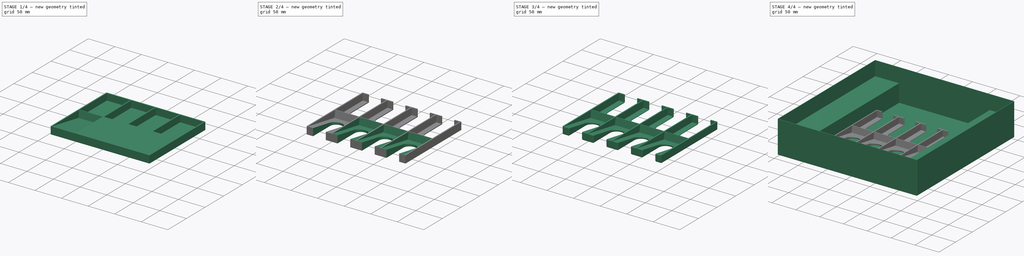
[diagram: build sequence overview — one tinted view per stage of 4, left to right]
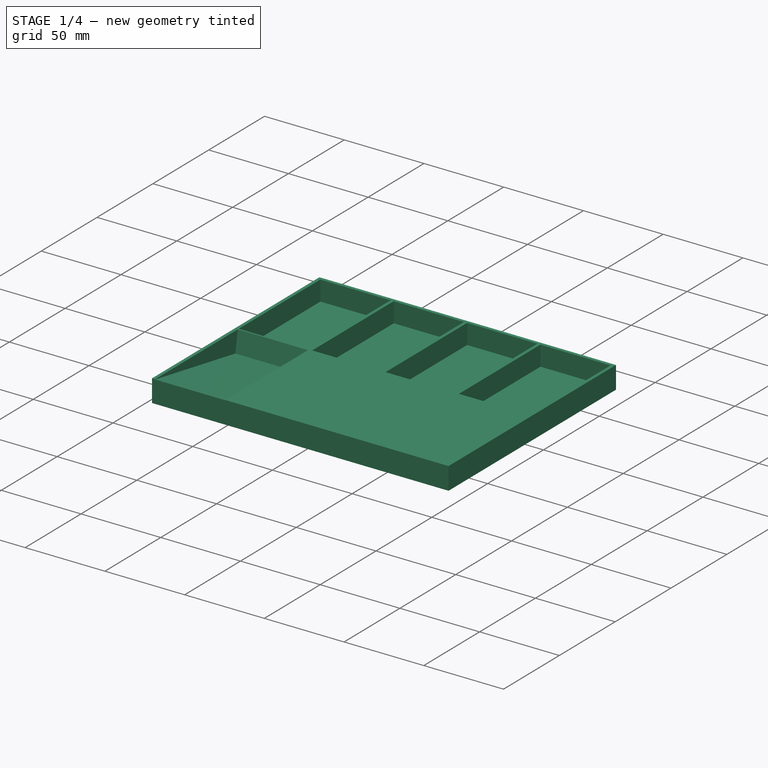
[diagram: stage 1 of 4 — iso view after this stage's code; geometry added in this stage tinted green]
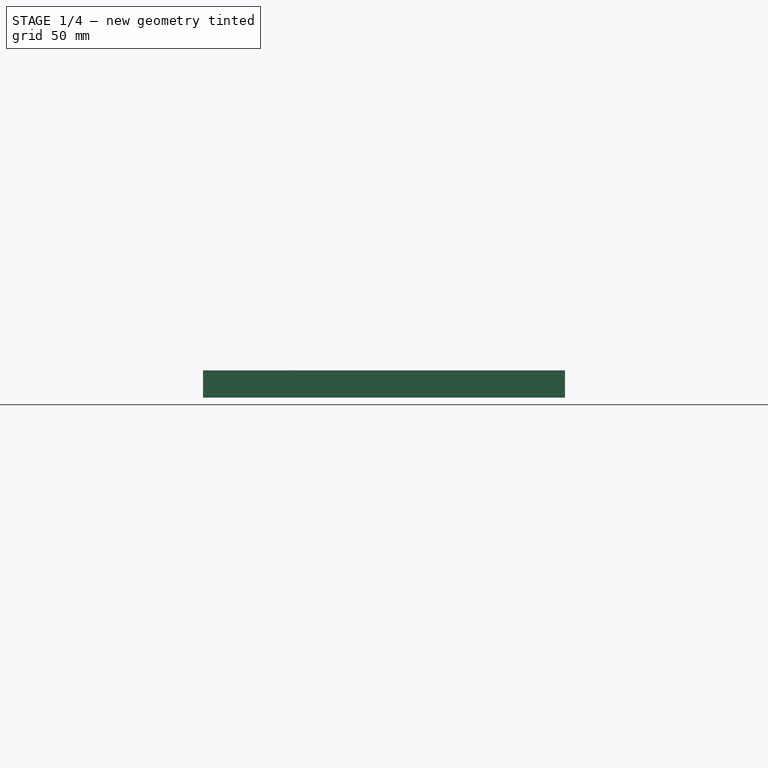
[diagram: stage 1 of 4 — front view after this stage's code; geometry added in this stage tinted green]
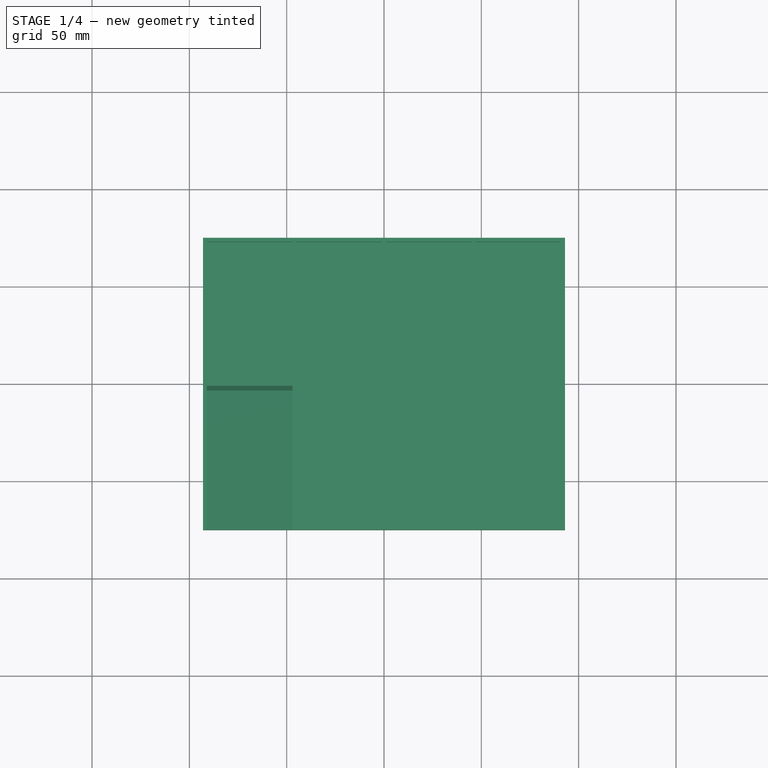
[diagram: stage 1 of 4 — top view after this stage's code; geometry added in this stage tinted green]
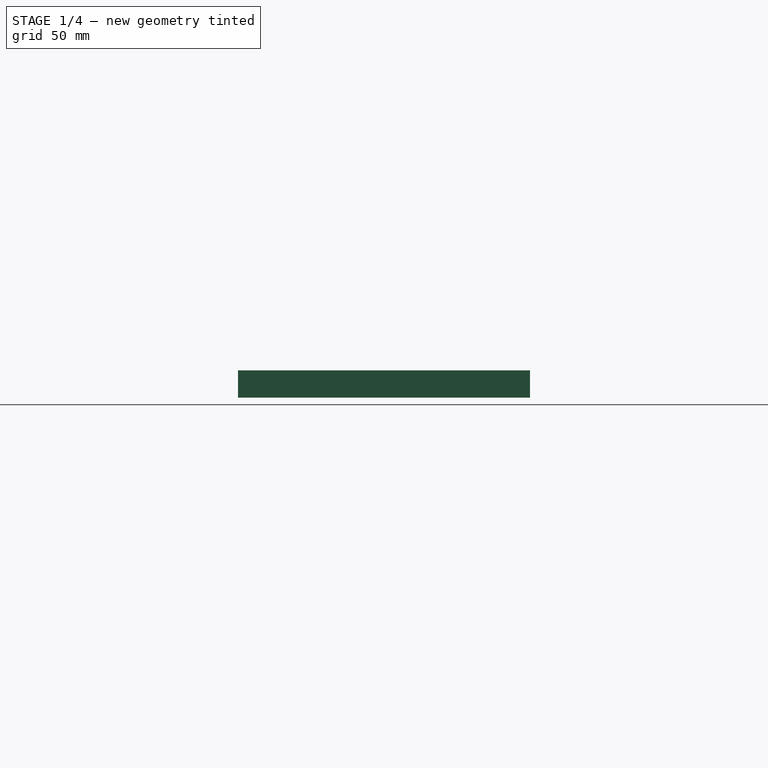
[diagram: stage 1 of 4 — right view after this stage's code; geometry added in this stage tinted green]
FCSTD DOCUMENT  (FreeCAD 0.20R29603 (Git))
Label: DungeonPetz
License: All rights reserved
LicenseURL: http://en.wikipedia.org/wiki/All_rights_reserved
objects: Sketcher::SketchObject×6, PartDesign::Pad×3, PartDesign::Pocket×3, PartDesign::LinearPattern×3, PartDesign::Fillet×3, PartDesign::Mirrored×2, PartDesign::Body×2, App::Part×2, PartDesign::Thickness×1, PartDesign::Plane×1, PartDesign::MultiTransform×1
note: 35 computed .brp shape members not serialized (recipe doc carries the construction recipe); baked Part::Feature solids carry a one-line shape summary decoded from their .brp

FEATURE [PartDesign::Body] Body
  Group = -> [Sketch,Pad,Thickness,Sketch001,Pad001,Mirrored]
  Origin = -> Origin
  Tip = -> Mirrored
FEATURE [App::Part] Part  label="Box"
  Group = -> [Body]
  Origin = -> Origin001
FEATURE [Sketcher::SketchObject] Sketch002
  FullyConstrained = true
  MapMode = 5
  Support = -> [XY_Plane003]
  sketch-geometry (4):
    g0: LineSegment StartX=-93 StartY=75 StartZ=0 EndX=93 EndY=75 EndZ=0
    g1: LineSegment StartX=93 StartY=75 StartZ=0 EndX=93 EndY=-75 EndZ=0
    g2: LineSegment StartX=93 StartY=-75 StartZ=0 EndX=-93 EndY=-75 EndZ=0
    g3: LineSegment StartX=-93 StartY=-75 StartZ=0 EndX=-93 EndY=75 EndZ=0
  constraints (10):
    c: Coincident(g0,g1)
    c: Coincident(g1,g2)
    c: Coincident(g2,g3)
    c: Coincident(g3,g0)
    c: Horizontal(g2)
    c: Vertical(g1)
    c: DistanceX(g0,g0) = 186
    c: DistanceY(g3,g3) = 150
    c: Symmetric(g0,g2,g-1)
    c: Symmetric(g0,g0,g-2)
FEATURE [PartDesign::Pad] Pad002
  Direction = (0,0,1)
  Length = 14
  Length2 = 10
  Profile = -> Sketch002
  ReferenceAxis = -> Sketch002 [N_Axis]
  Type = 0
FEATURE [PartDesign::Plane] DatumPlane
  Length = 219.407
  MapMode = 5
  Placement = pos=(0,0,14) rot=(0,0,1;0rad)
  ResizeMode = 0
  Support = -> [Pad002]
  Width = 183.407
FEATURE [Sketcher::SketchObject] Sketch003
  AttachmentOffset = pos=(-69,0,0) rot=(0,0,1;0rad)
  FullyConstrained = true
  MapMode = 5
  Placement = pos=(-69,0,14) rot=(0,0,1;0rad)
  Support = -> [DatumPlane]
  sketch-geometry (4):
    g0: LineSegment StartX=-22 StartY=73 StartZ=0 EndX=22 EndY=73 EndZ=0
    g1: LineSegment StartX=22 StartY=73 StartZ=0 EndX=22 EndY=0 EndZ=0
    g2: LineSegment StartX=22 StartY=0 StartZ=0 EndX=-22 EndY=0 EndZ=0
    g3: LineSegment StartX=-22 StartY=0 StartZ=0 EndX=-22 EndY=73 EndZ=0
  constraints (11):
    c: Coincident(g0,g1)
    c: Coincident(g1,g2)
    c: Coincident(g2,g3)
    c: Coincident(g3,g0)
    c: Horizontal(g2)
    c: Vertical(g1)
    c: Vertical(g3)
    c: PointOnObject(g1,g-1)
    c: DistanceY(g3,g3) = 73
    c: DistanceX(g0,g0) = 44
    c: Symmetric(g0,g0,g-2)
FEATURE [PartDesign::Pocket] Pocket
  BaseFeature = -> Pad002
  Direction = (0,0,-1)
  Length = 12.5
  Length2 = 5
  Profile = -> Sketch003
  ReferenceAxis = -> Sketch003 [N_Axis]
  Type = 0
FEATURE [PartDesign::LinearPattern] LinearPattern
  BaseFeature = -> Pocket
  Direction = -> Sketch003 [H_Axis]
  Length = 138
  Occurrences = 4
  Originals = -> [Pocket]
FEATURE [Sketcher::SketchObject] Sketch004
  AttachmentOffset = pos=(-69,-1,0) rot=(1,0,0;-0.174533rad)
  FullyConstrained = true
  MapMode = 5
  Placement = pos=(-69,-1,14) rot=(1,0,0;6.10865rad)
  Support = -> [DatumPlane]
  sketch-geometry (4):
    g0: LineSegment StartX=-22 StartY=0 StartZ=0 EndX=22 EndY=0 EndZ=0
    g1: LineSegment StartX=22 StartY=0 StartZ=0 EndX=22 EndY=-73 EndZ=0
    g2: LineSegment StartX=22 StartY=-73 StartZ=0 EndX=-22 EndY=-73 EndZ=0
    g3: LineSegment StartX=-22 StartY=-73 StartZ=0 EndX=-22 EndY=0 EndZ=0
  constraints (11):
    c: Coincident(g0,g1)
    c: Coincident(g1,g2)
    c: Coincident(g2,g3)
    c: Coincident(g3,g0)
    c: Horizontal(g2)
    c: Vertical(g1)
    c: Vertical(g3)
    c: PointOnObject(g0,g-1)
    c: DistanceY(g3,g3) = 73
    c: DistanceX(g0,g0) = 44
    c: Symmetric(g0,g0,g-2)
FEATURE [PartDesign::Pocket] Pocket001
  BaseFeature = -> LinearPattern
  Direction = (0,-0.173648,-0.984808)
  Length = 13
  Length2 = 5
  Profile = -> Sketch004
  ReferenceAxis = -> Sketch004 [N_Axis]
  Type = 0
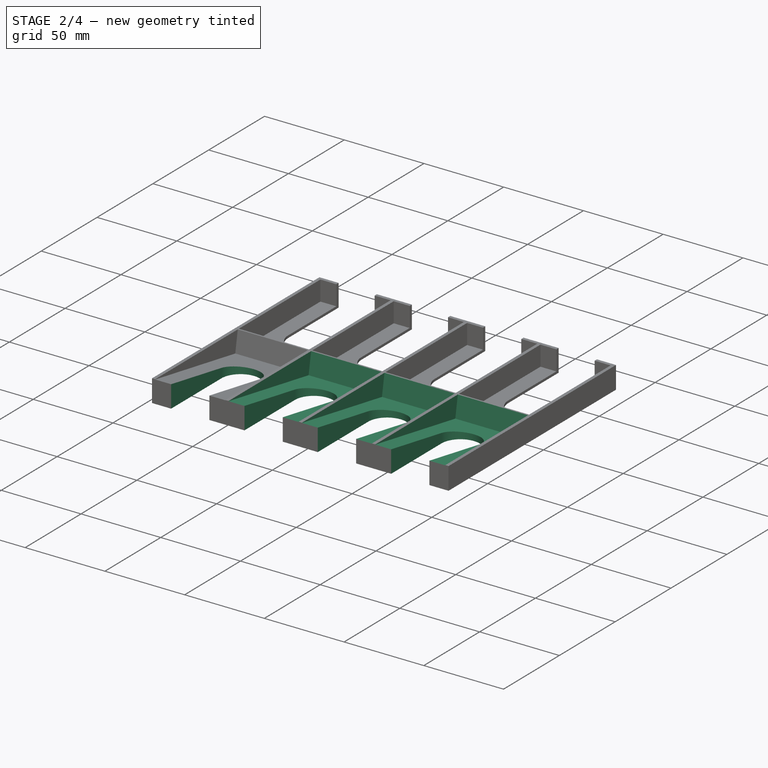
[diagram: stage 2 of 4 — iso view after this stage's code; geometry added in this stage tinted green]
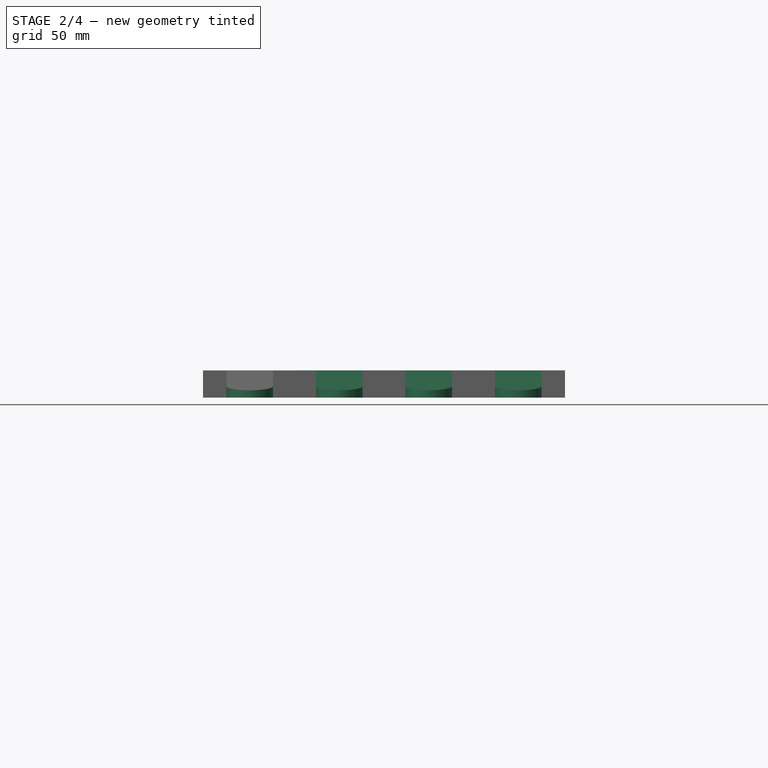
[diagram: stage 2 of 4 — front view after this stage's code; geometry added in this stage tinted green]
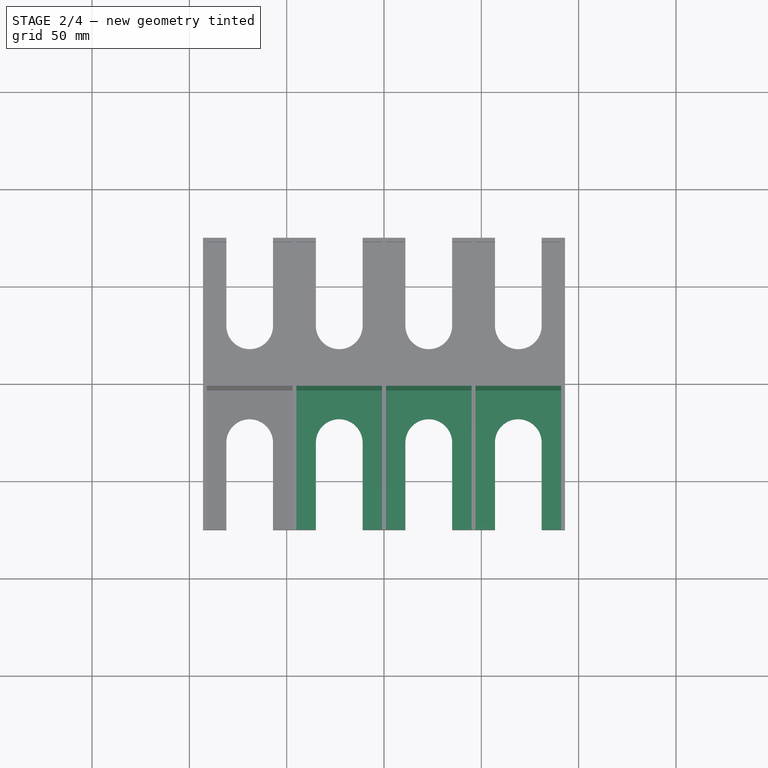
[diagram: stage 2 of 4 — top view after this stage's code; geometry added in this stage tinted green]
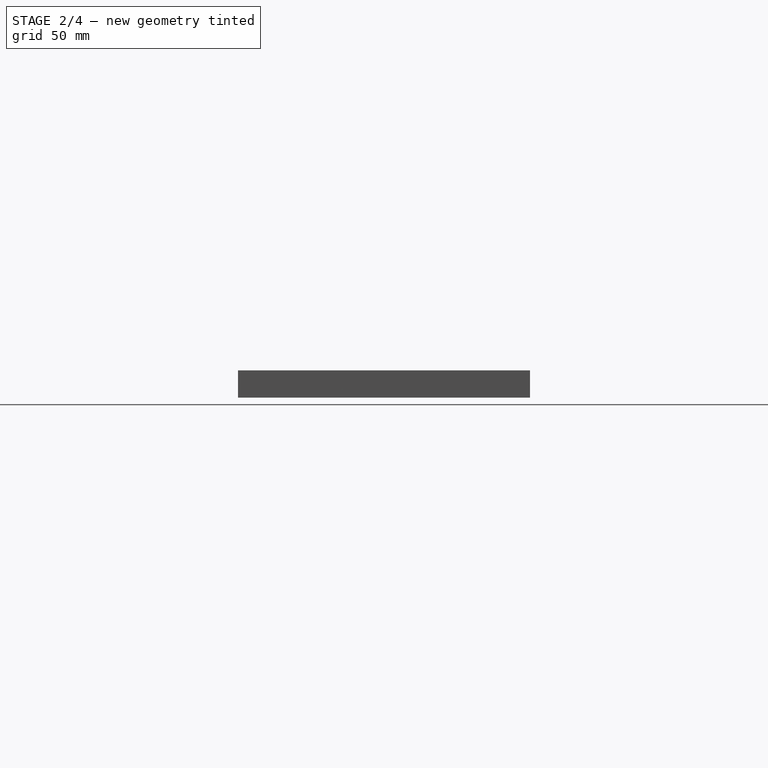
[diagram: stage 2 of 4 — right view after this stage's code; geometry added in this stage tinted green]
FEATURE [PartDesign::LinearPattern] LinearPattern001
  BaseFeature = -> Pocket001
  Direction = -> Sketch004 [H_Axis]
  Length = 138
  Occurrences = 4
  Originals = -> [Pocket001]
FEATURE [Sketcher::SketchObject] Sketch005
  AttachmentOffset = pos=(-69,30,0) rot=(0,0,1;0rad)
  FullyConstrained = false
  MapMode = 5
  Placement = pos=(-69,30,14) rot=(0,0,1;0rad)
  Support = -> [DatumPlane]
  sketch-geometry (4):
    g0: LineSegment StartX=12 StartY=0 StartZ=0 EndX=12 EndY=50 EndZ=0
    g1: LineSegment StartX=12 StartY=50 StartZ=0 EndX=-12 EndY=50 EndZ=0
    g2: LineSegment StartX=-12 StartY=50 StartZ=0 EndX=-12 EndY=0 EndZ=0
    g3: ArcOfCircle CenterX=0 CenterY=0 CenterZ=0 NormalX=0 NormalY=0 NormalZ=1 AngleXU=0 Radius=12 StartAngle=3.14159 EndAngle=6.28319
  constraints (9):
    c: Coincident(g0,g1)
    c: Coincident(g1,g2)
    c: Horizontal(g1)
    c: Vertical(g0)
    c: Vertical(g2)
    c: PointOnObject(g2,g-1)
    c: DistanceX(g1,g1) = 24
    c: Coincident(g3,g-1)
    c: DistanceY(g2,g2) = 50
FEATURE [PartDesign::Pocket] Pocket002
  BaseFeature = -> LinearPattern001
  Direction = (0,0,-1)
  Length = 5
  Length2 = 5
  Profile = -> Sketch005
  ReferenceAxis = -> Sketch005 [N_Axis]
  Type = 1
FEATURE [PartDesign::LinearPattern] LinearPattern002
  Direction = -> Sketch005 [H_Axis]
  Length = 138
  Occurrences = 4
FEATURE [PartDesign::Mirrored] Mirrored001
  MirrorPlane = -> XZ_Plane003
FEATURE [PartDesign::MultiTransform] MultiTransform
  BaseFeature = -> Pocket002
  Originals = -> [Pocket002]
  Transformations = -> [LinearPattern002,Mirrored001]
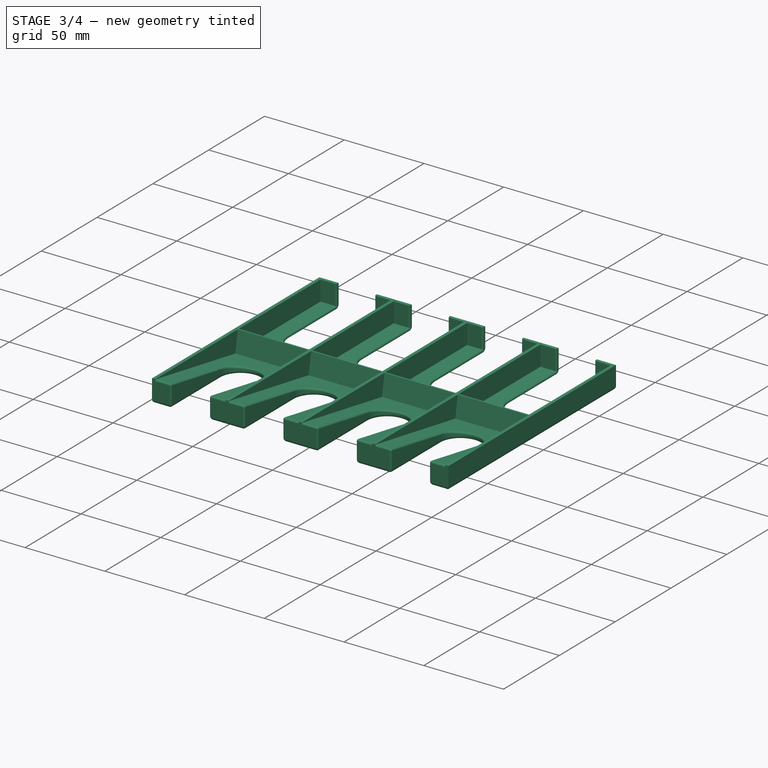
[diagram: stage 3 of 4 — iso view after this stage's code; geometry added in this stage tinted green]
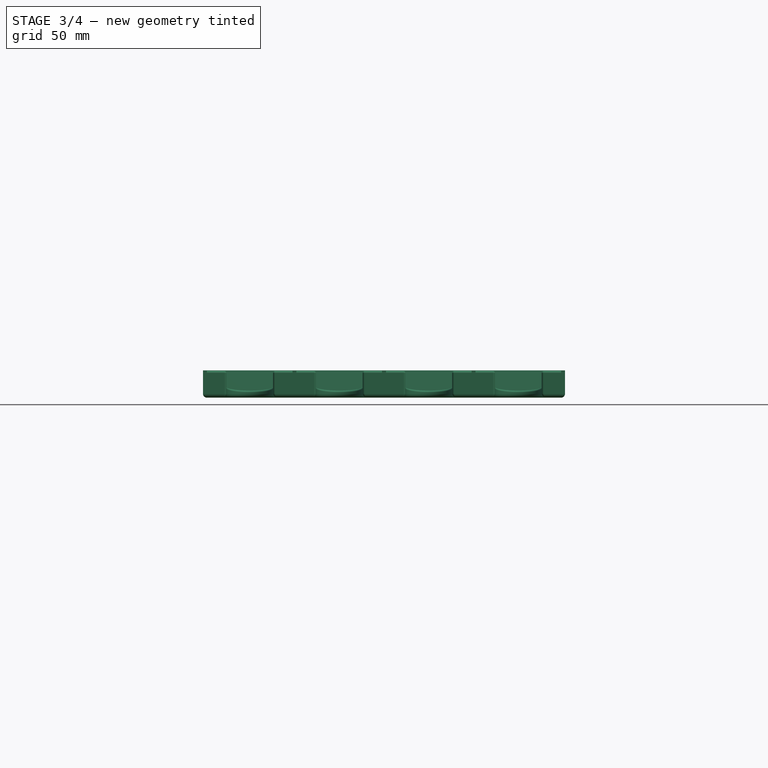
[diagram: stage 3 of 4 — front view after this stage's code; geometry added in this stage tinted green]
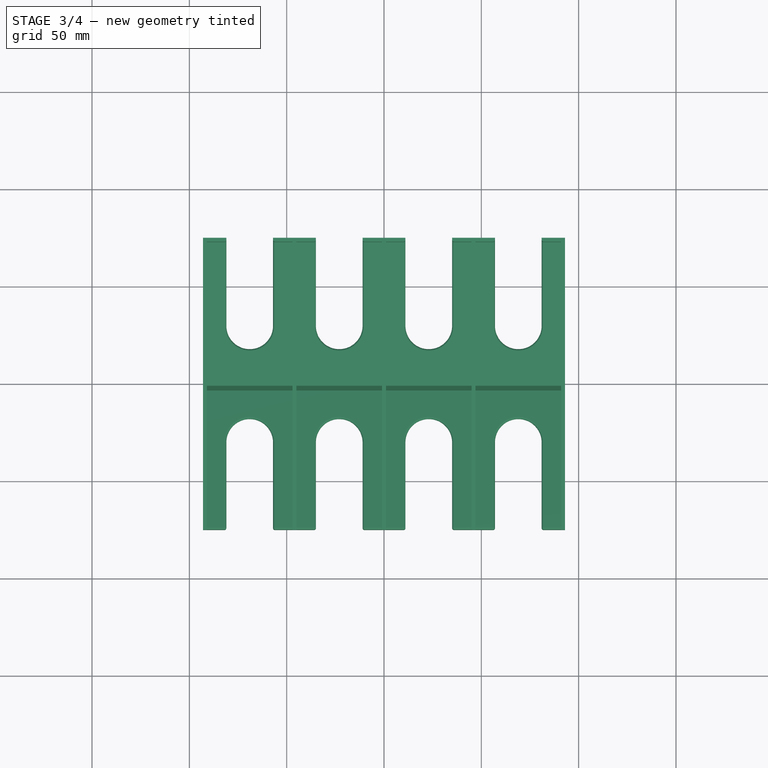
[diagram: stage 3 of 4 — top view after this stage's code; geometry added in this stage tinted green]
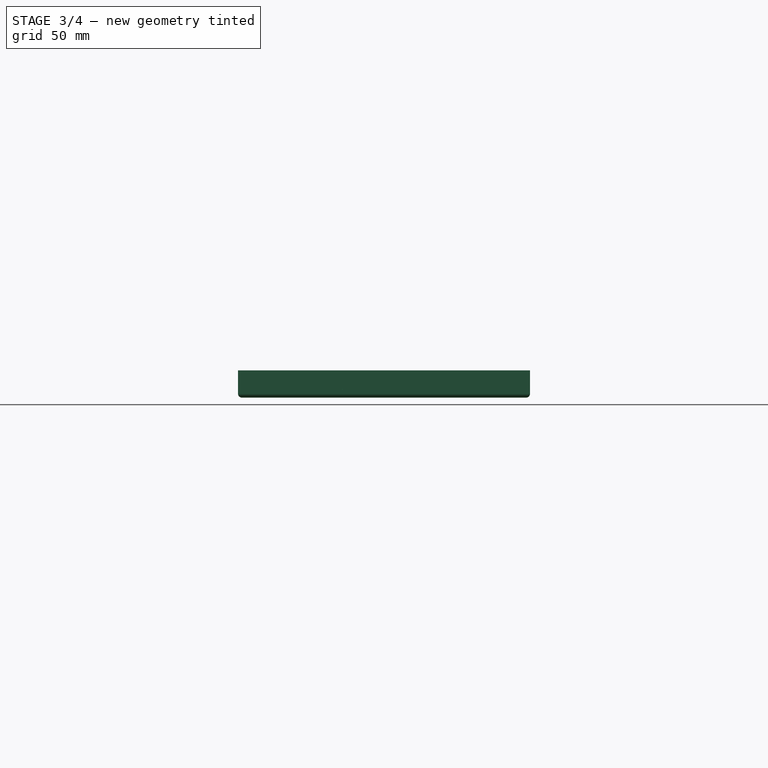
[diagram: stage 3 of 4 — right view after this stage's code; geometry added in this stage tinted green]
FEATURE [PartDesign::Fillet] Fillet
  Base = -> MultiTransform [Edge169,Edge160,Edge158,Edge149,Edge147,Edge138,Edge136,Edge129,Edge172,Edge161,Edge164,Edge150,Edge153,Edge139,Edge142,Edge130,Edge170,Edge167,Edge165,Edge159,Edge156,Edge154,Edge148,Edge145,Edge143,Edge137,Edge134,Edge132]
  BaseFeature = -> MultiTransform
  Radius = 1
  SupportTransform = false
  UseAllEdges = false
FEATURE [PartDesign::Fillet] Fillet001
  Base = -> Fillet [Edge61,Edge67,Edge62,Edge73,Edge72,Edge88,Edge87,Edge93,Edge99,Edge98,Edge108,Edge107,Edge119,Edge125,Edge124,Edge134,Edge133,Edge139,Edge145,Edge144]
  BaseFeature = -> Fillet
  Radius = 1
  SupportTransform = false
  UseAllEdges = false
FEATURE [PartDesign::Fillet] Fillet002
  Base = -> Fillet001 [Edge108,Edge74,Edge68,Edge82,Edge90,Edge98,Edge106,Edge72,Edge81,Edge93,Edge105,Edge110]
  BaseFeature = -> Fillet001
  Radius = 2
  SupportTransform = false
  UseAllEdges = false
FEATURE [PartDesign::Body] Body001  label="Needs"
  Group = -> [Sketch002,Pad002,DatumPlane,Sketch003,Pocket,LinearPattern,Sketch004,Pocket001,LinearPattern001,Sketch005,Pocket002,MultiTransform,LinearPattern002,Mirrored001,Fillet,Fillet001,Fillet002]
  Origin = -> Origin003
  Placement = pos=(0,71,0) rot=(0,0,1;0rad)
  Tip = -> Fillet002
FEATURE [App::Part] Part001  label="Cards"
  Group = -> [Body001]
  Origin = -> Origin002
  Placement = pos=(0,-1,0) rot=(0,0,1;0rad)
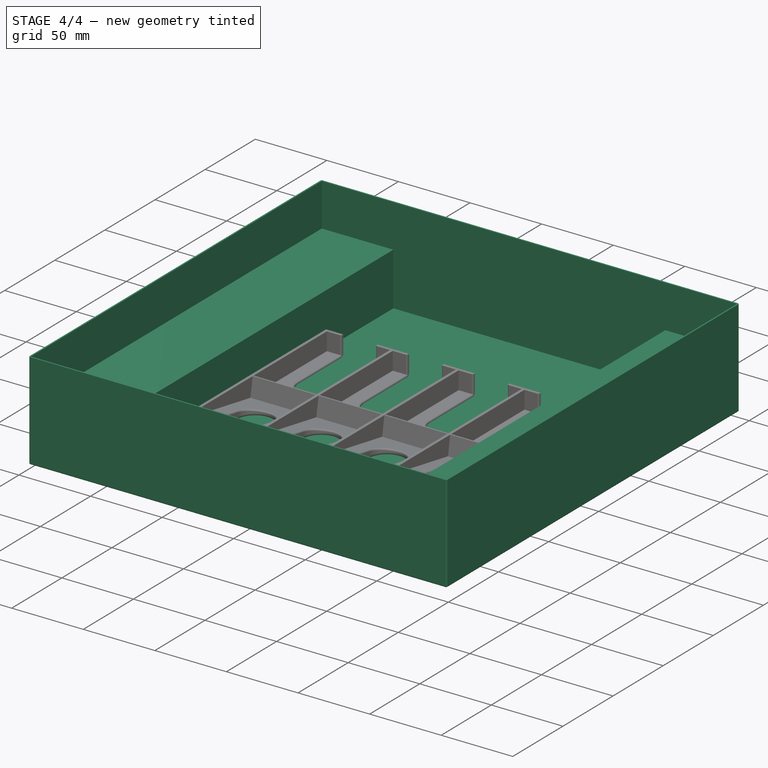
[diagram: stage 4 of 4 — iso view after this stage's code; geometry added in this stage tinted green]
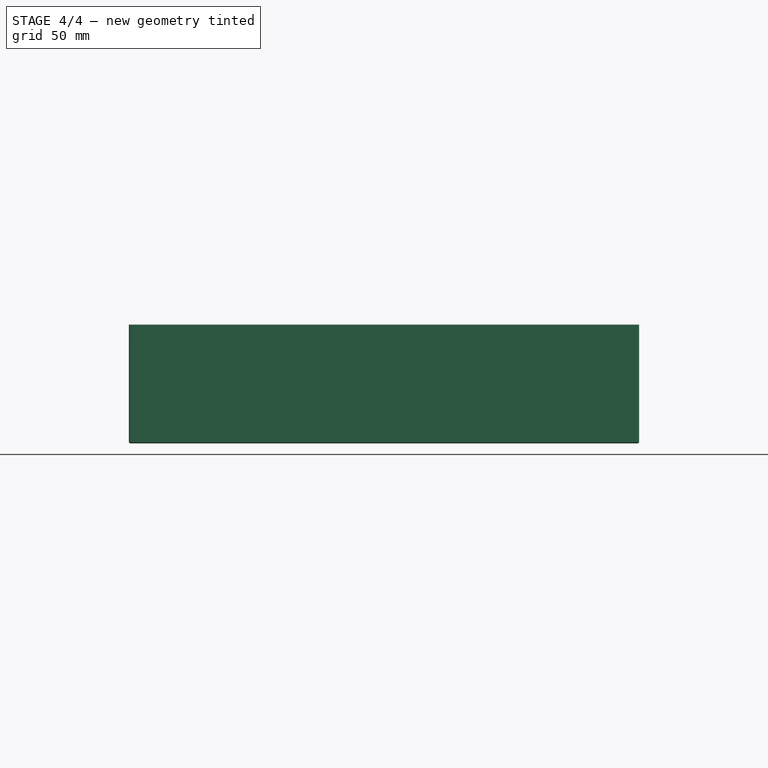
[diagram: stage 4 of 4 — front view after this stage's code; geometry added in this stage tinted green]
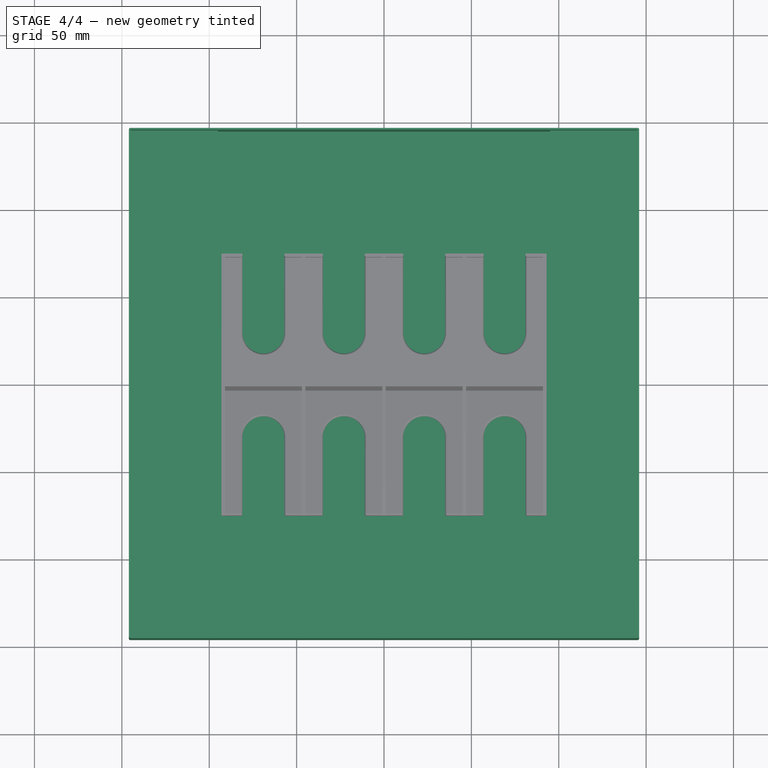
[diagram: stage 4 of 4 — top view after this stage's code; geometry added in this stage tinted green]
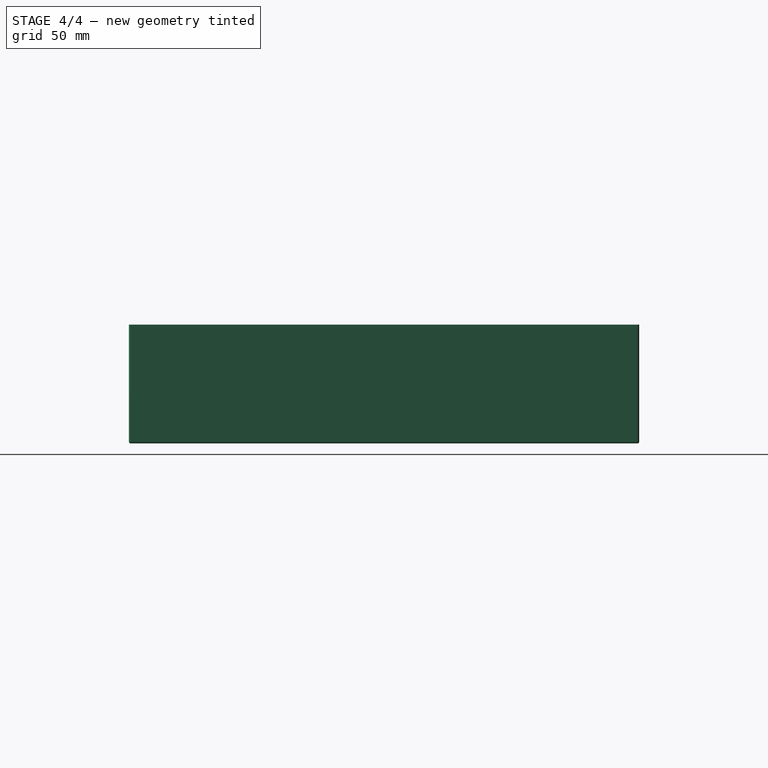
[diagram: stage 4 of 4 — right view after this stage's code; geometry added in this stage tinted green]
FEATURE [Sketcher::SketchObject] Sketch
  FullyConstrained = true
  MapMode = 5
  Support = -> [XY_Plane]
  sketch-geometry (4):
    g0: LineSegment StartX=-145 StartY=145 StartZ=0 EndX=145 EndY=145 EndZ=0
    g1: LineSegment StartX=145 StartY=145 StartZ=0 EndX=145 EndY=-145 EndZ=0
    g2: LineSegment StartX=145 StartY=-145 StartZ=0 EndX=-145 EndY=-145 EndZ=0
    g3: LineSegment StartX=-145 StartY=-145 StartZ=0 EndX=-145 EndY=145 EndZ=0
  constraints (10):
    c: Coincident(g0,g1)
    c: Coincident(g1,g2)
    c: Coincident(g2,g3)
    c: Coincident(g3,g0)
    c: Horizontal(g2)
    c: Vertical(g1)
    c: DistanceX(g0,g0) = 290
    c: DistanceY(g3,g3) = 290
    c: Symmetric(g0,g0,g-2)
    c: Symmetric(g2,g0,g-1)
FEATURE [PartDesign::Pad] Pad
  Direction = (0,0,1)
  Length = 67
  Length2 = 10
  Profile = -> Sketch
  ReferenceAxis = -> Sketch [N_Axis]
  Type = 0
FEATURE [PartDesign::Thickness] Thickness
  Base = -> Pad [Face6]
  BaseFeature = -> Pad
  Intersection = false
  Join = 0
  Mode = 0
  SupportTransform = false
  Value = 1
FEATURE [Sketcher::SketchObject] Sketch001
  AttachmentOffset = pos=(120,0,0) rot=(0,0,1;0rad)
  FullyConstrained = true
  MapMode = 5
  Placement = pos=(120,0,0) rot=(0,0,1;0rad)
  Support = -> [Thickness]
  sketch-geometry (4):
    g0: LineSegment StartX=-25 StartY=145 StartZ=0 EndX=25 EndY=145 EndZ=0
    g1: LineSegment StartX=25 StartY=145 StartZ=0 EndX=25 EndY=-145 EndZ=0
    g2: LineSegment StartX=25 StartY=-145 StartZ=0 EndX=-25 EndY=-145 EndZ=0
    g3: LineSegment StartX=-25 StartY=-145 StartZ=0 EndX=-25 EndY=145 EndZ=0
  constraints (10):
    c: Coincident(g0,g1)
    c: Coincident(g1,g2)
    c: Coincident(g2,g3)
    c: Coincident(g3,g0)
    c: Horizontal(g2)
    c: Vertical(g1)
    c: DistanceX(g0,g0) = 50
    c: DistanceY(g3,g3) = 290
    c: Symmetric(g0,g0,g-2)
    c: Symmetric(g0,g2,g-1)
FEATURE [PartDesign::Pad] Pad001
  BaseFeature = -> Thickness
  Direction = (0,0,1)
  Length = 37
  Length2 = 10
  Profile = -> Sketch001
  ReferenceAxis = -> Sketch001 [N_Axis]
  Type = 0
FEATURE [PartDesign::Mirrored] Mirrored
  BaseFeature = -> Pad001
  MirrorPlane = -> YZ_Plane
  Originals = -> [Pad001]
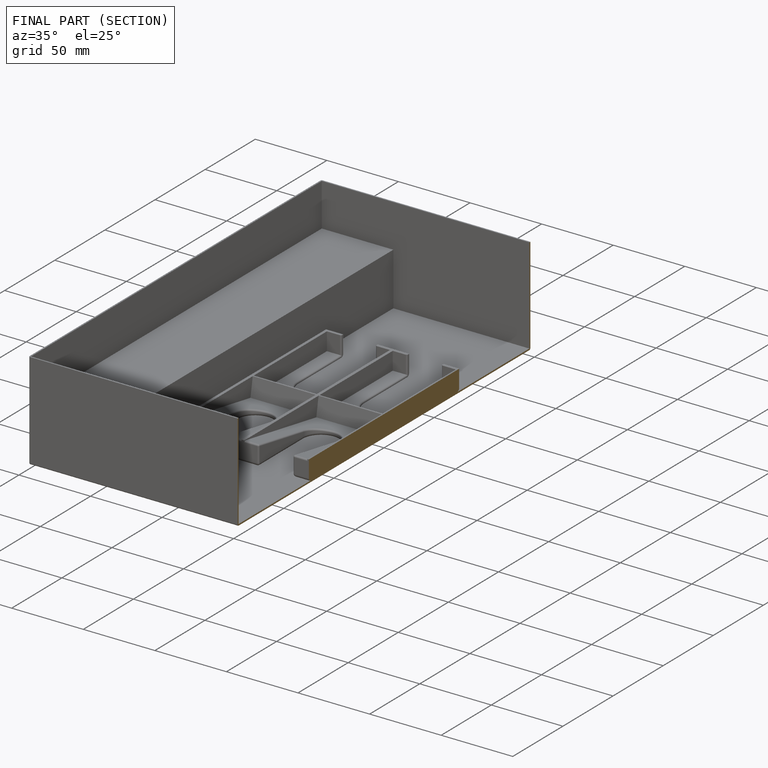
[diagram: finished part — half-section view (interior)]
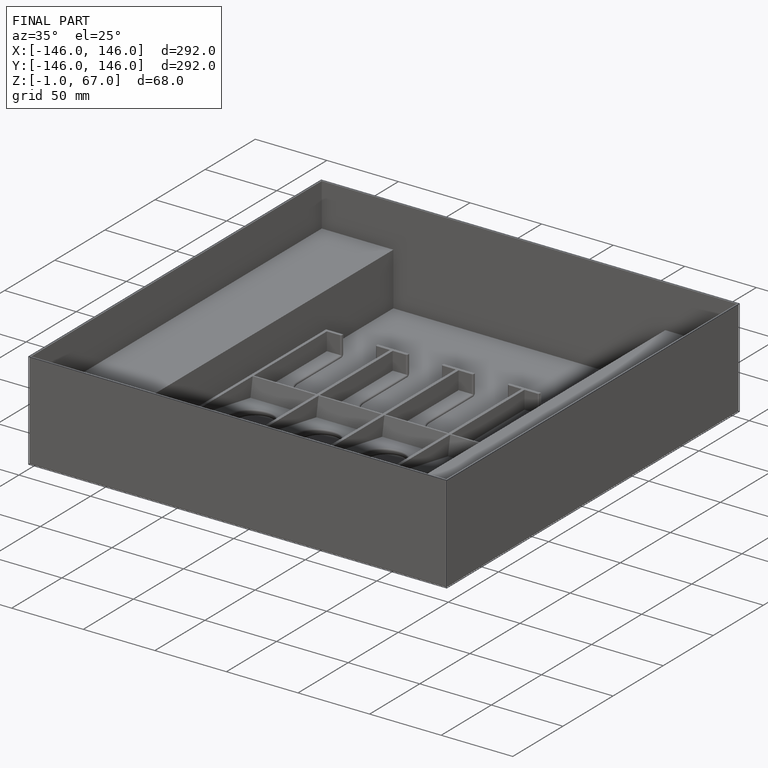
[diagram: finished part — iso view with bounding-box wireframe]
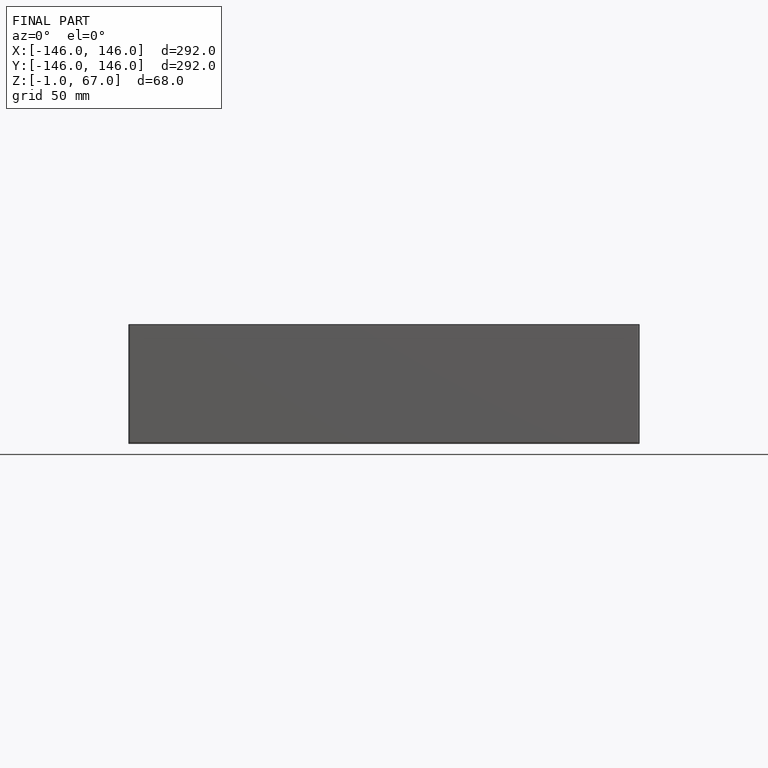
[diagram: finished part — front view with bounding-box wireframe]
